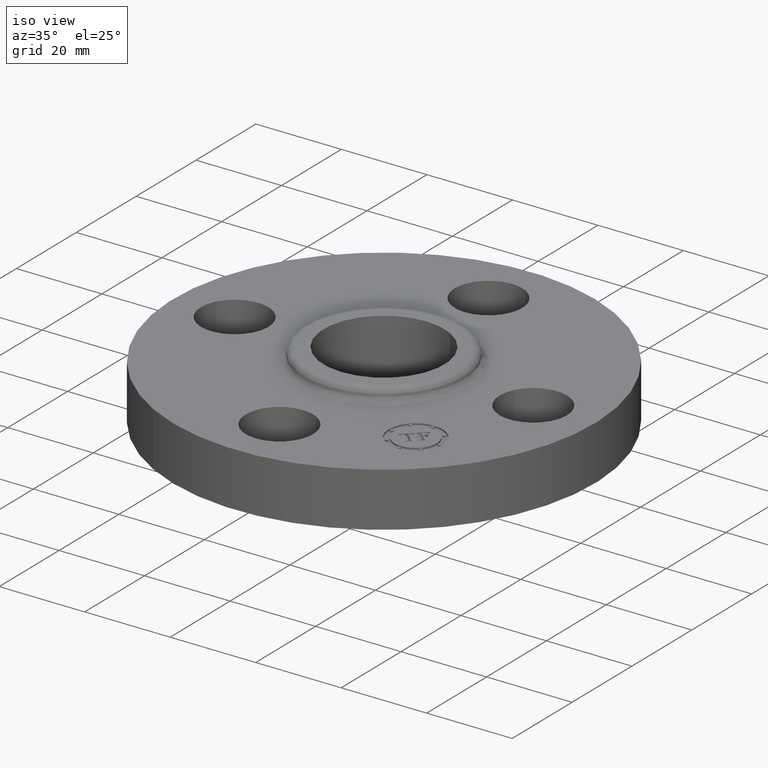
[diagram: clean part render]
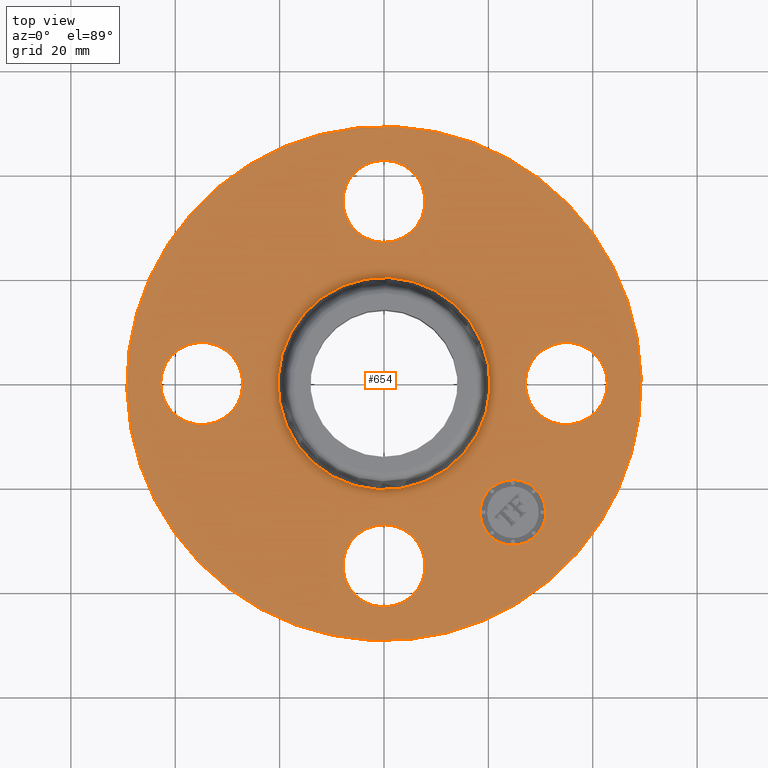
[diagram: tour spotlight — one face highlighted and labeled with its STEP entity id]
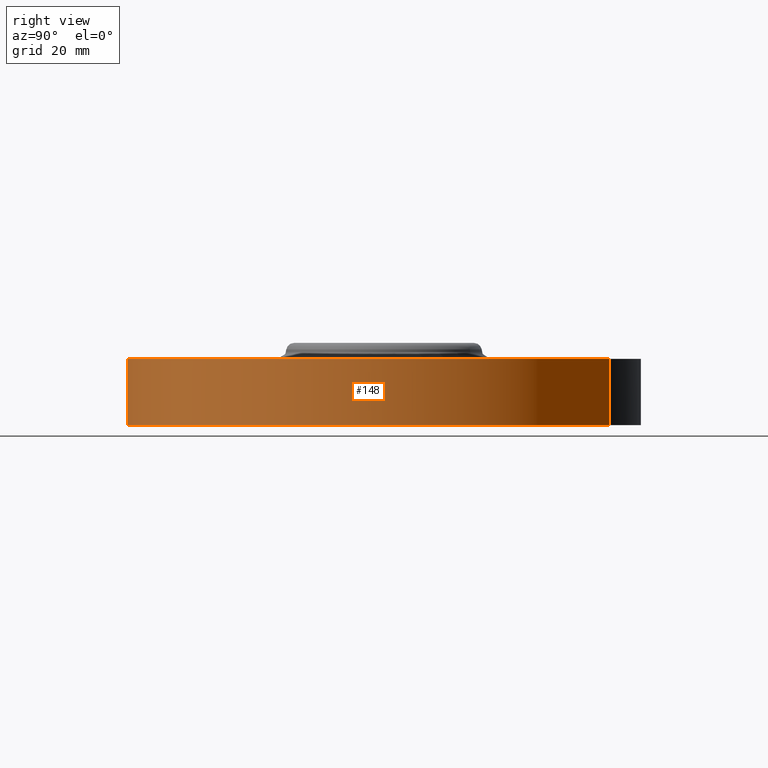
[diagram: tour spotlight — one face highlighted and labeled with its STEP entity id]
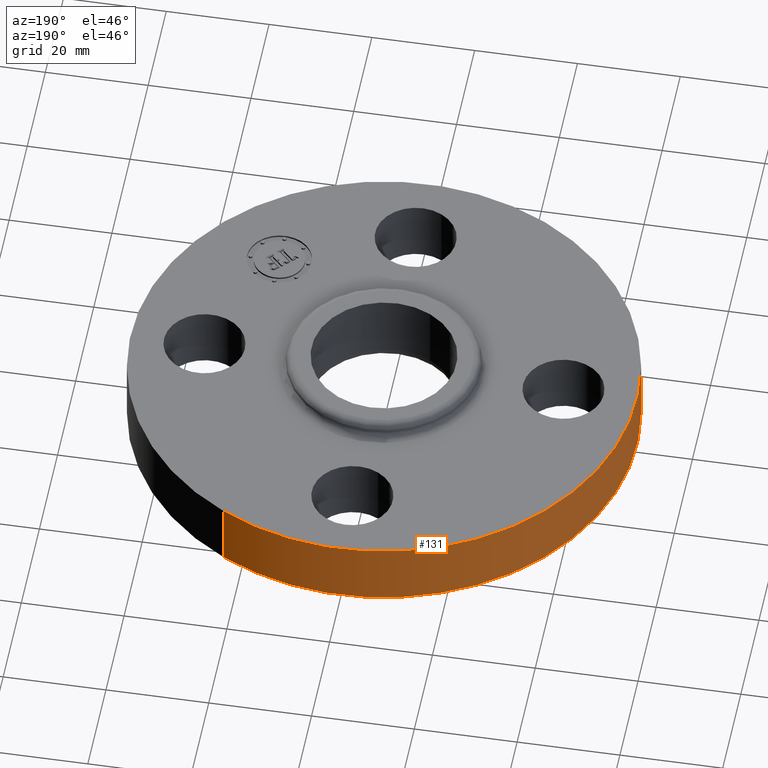
[diagram: tour spotlight — one face highlighted and labeled with its STEP entity id]
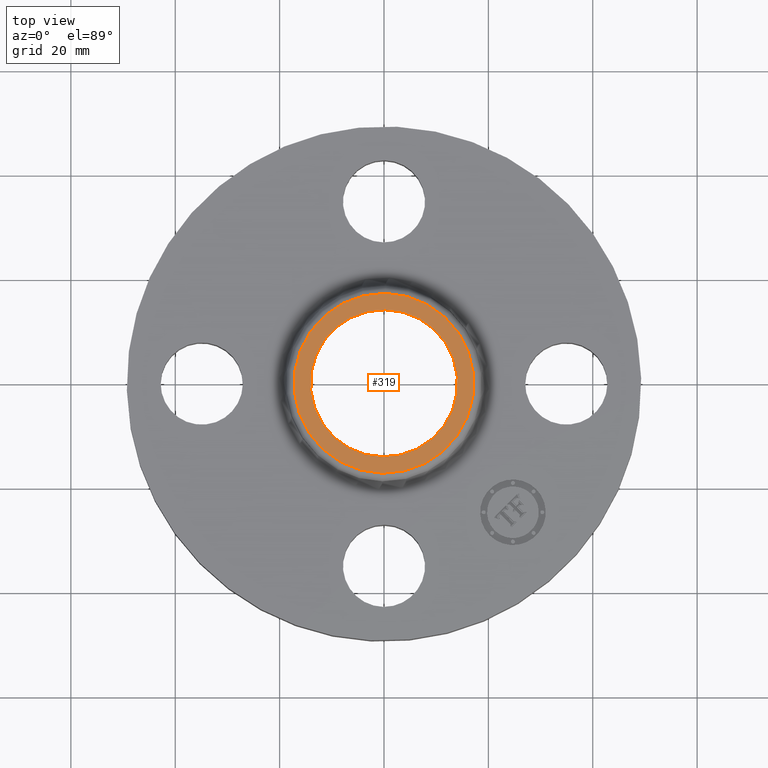
[diagram: tour spotlight — one face highlighted and labeled with its STEP entity id]
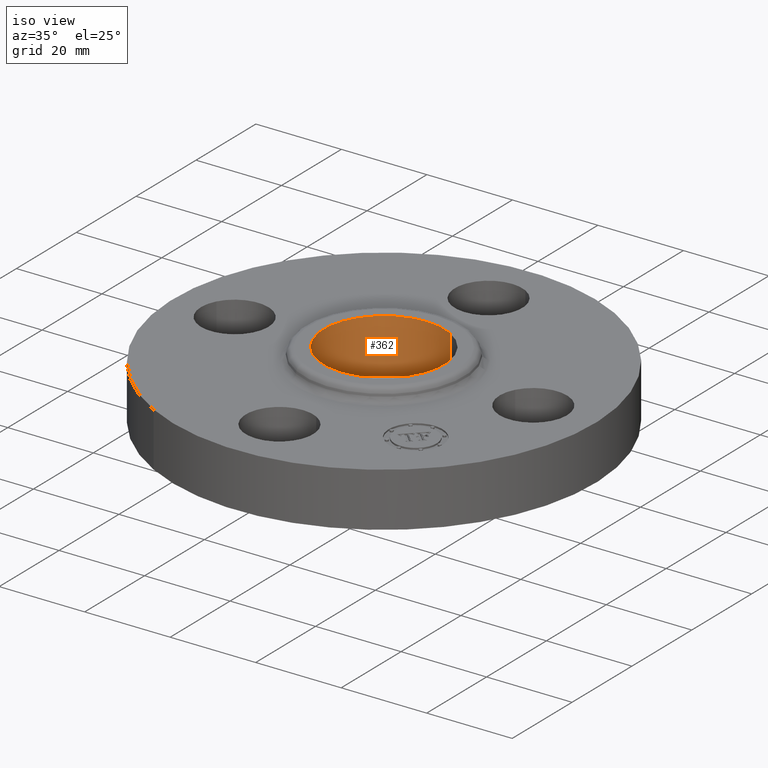
[diagram: tour spotlight — one face highlighted and labeled with its STEP entity id]
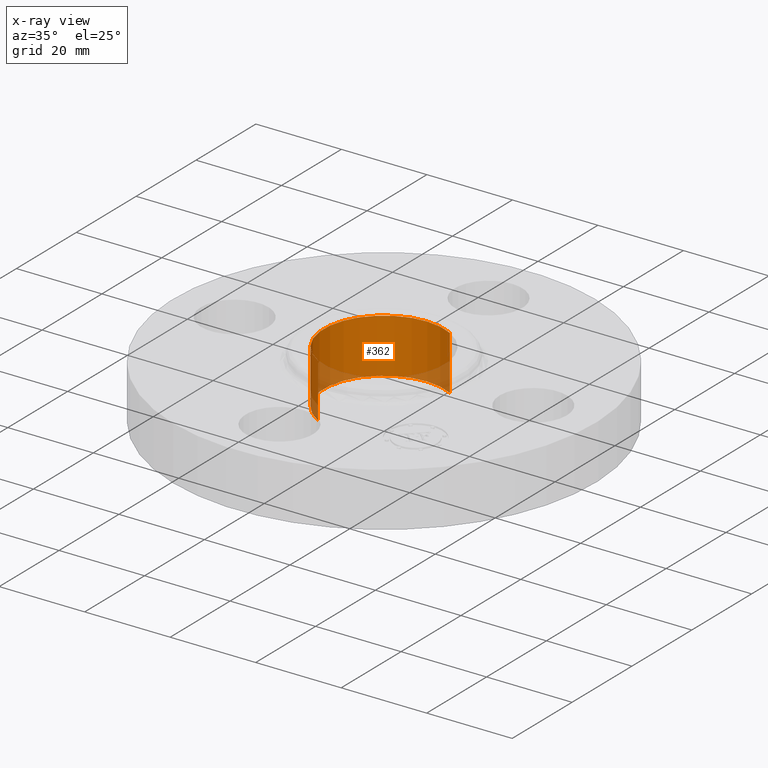
[diagram: x-ray of the same camera — body ghosted, this tour face saturated]
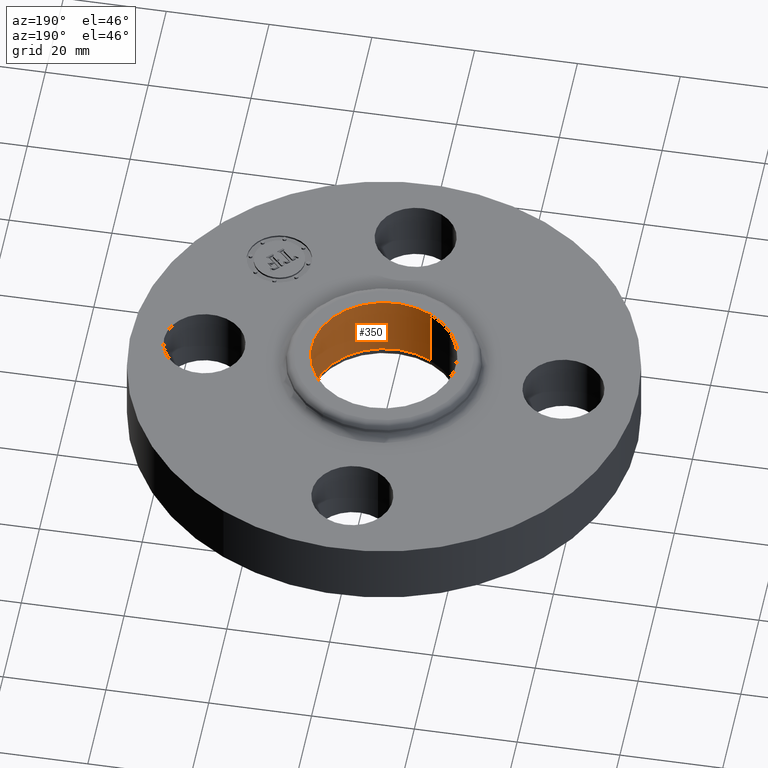
[diagram: tour spotlight — one face highlighted and labeled with its STEP entity id]
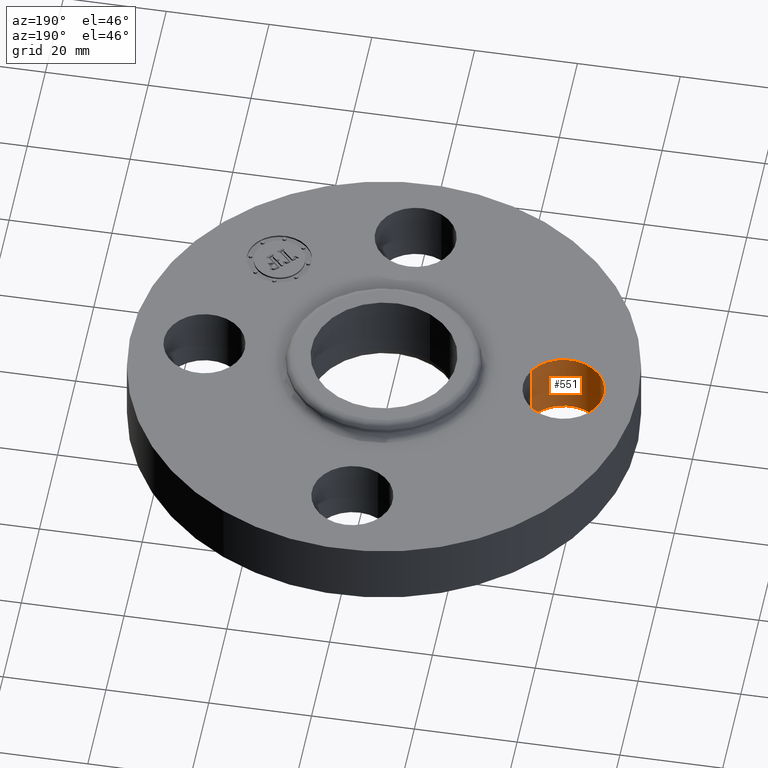
[diagram: tour spotlight — one face highlighted and labeled with its STEP entity id]
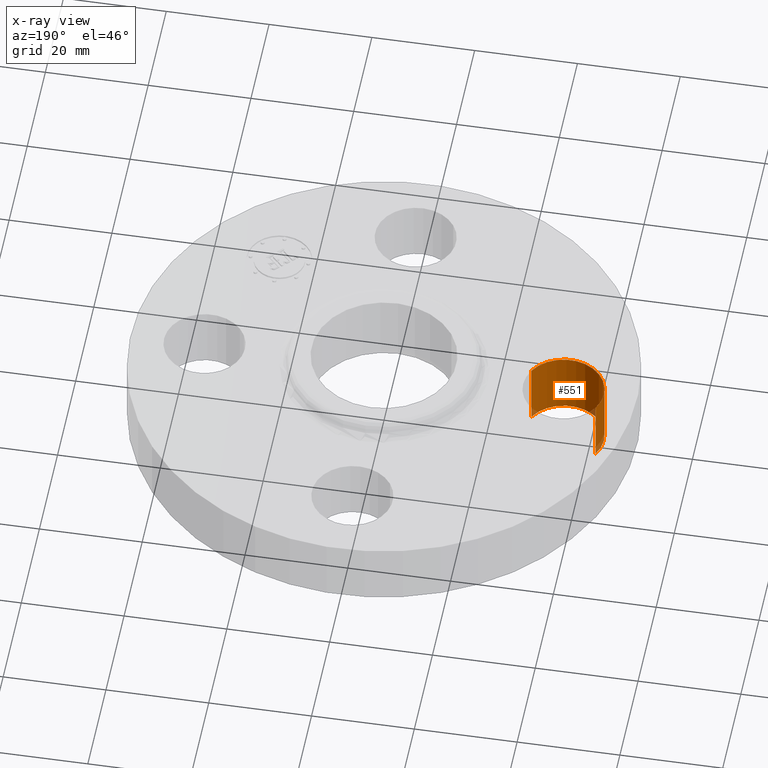
[diagram: x-ray of the same camera — body ghosted, this tour face saturated]
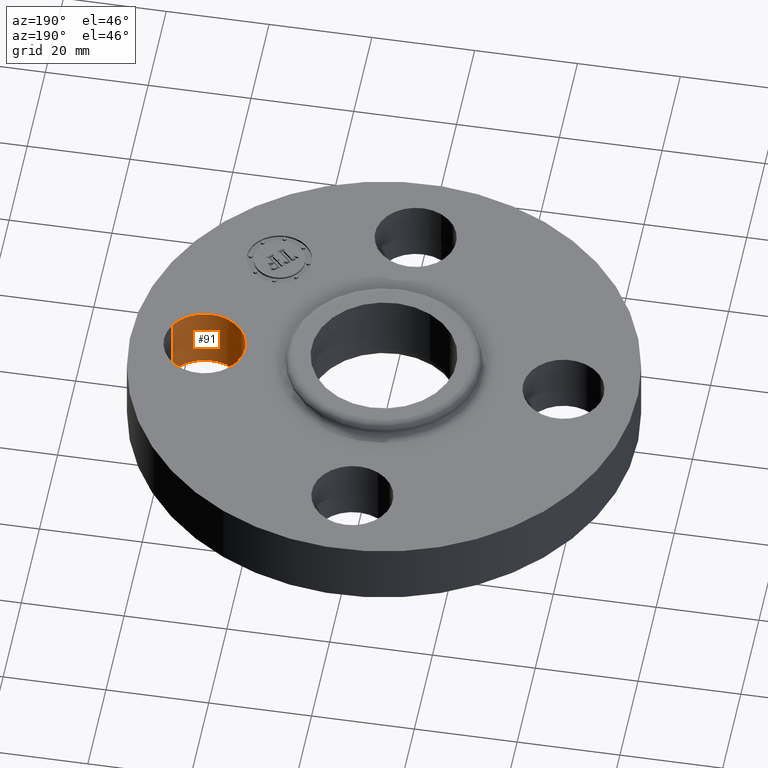
[diagram: tour spotlight — one face highlighted and labeled with its STEP entity id]
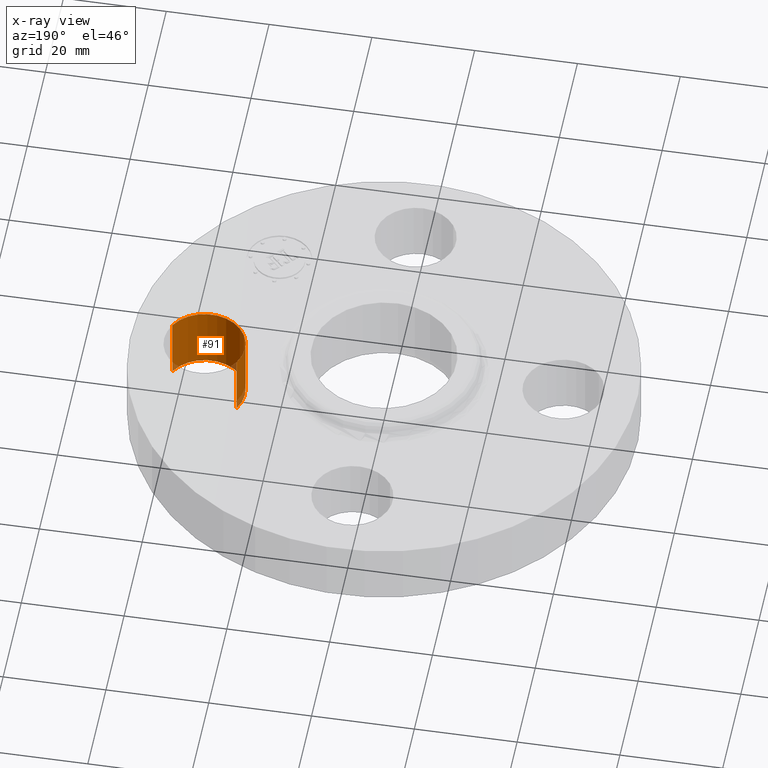
[diagram: x-ray of the same camera — body ghosted, this tour face saturated]
A machine part: a face-by-face anatomy tour. The part has 408 B-rep faces; the first image is the clean iso view, then the 8 largest visible faces are spotlighted one at a time (largest first), each with its STEP entity span.

Face 1 — top view, entity #654. In plain terms, the highlighted planar face has unit normal (0, 0, -1).
Definition (entity closure, byte-faithful):
#65=AXIS2_PLACEMENT_3D('Circle Axis2P3D',#63,#64,$) ;
#82=AXIS2_PLACEMENT_3D('Circle Axis2P3D',#80,#81,$) ;
#115=AXIS2_PLACEMENT_3D('Circle Axis2P3D',#113,#114,$) ;
#139=AXIS2_PLACEMENT_3D('Circle Axis2P3D',#137,#138,$) ;
#156=AXIS2_PLACEMENT_3D('Circle Axis2P3D',#154,#155,$) ;
#191=AXIS2_PLACEMENT_3D('Circle Axis2P3D',#189,#190,$) ;
#499=AXIS2_PLACEMENT_3D('Circle Axis2P3D',#497,#498,$) ;
#511=AXIS2_PLACEMENT_3D('Circle Axis2P3D',#509,#510,$) ;
#542=AXIS2_PLACEMENT_3D('Circle Axis2P3D',#540,#541,$) ;
#554=AXIS2_PLACEMENT_3D('Circle Axis2P3D',#552,#553,$) ;
#585=AXIS2_PLACEMENT_3D('Circle Axis2P3D',#583,#584,$) ;
#597=AXIS2_PLACEMENT_3D('Circle Axis2P3D',#595,#596,$) ;
#610=AXIS2_PLACEMENT_3D('Plane Axis2P3D',#607,#608,#609) ;
#638=AXIS2_PLACEMENT_3D('Circle Axis2P3D',#636,#637,$) ;
#647=AXIS2_PLACEMENT_3D('Circle Axis2P3D',#645,#646,$) ;
#46=CARTESIAN_POINT('Vertex',(1.10294940582,0.148621916968,0.500000000002)) ;
#60=CARTESIAN_POINT('Vertex',(1.64705059419,-0.148621916968,0.500000000002)) ;
#63=CARTESIAN_POINT('Axis2P3D Location',(1.37500000001,0.,0.500000000002)) ;
#80=CARTESIAN_POINT('Axis2P3D Location',(1.37500000001,0.,0.500000000002)) ;
#110=CARTESIAN_POINT('Vertex',(-0.930085544896,-1.70251017007,0.500000000002)) ;
#113=CARTESIAN_POINT('Axis2P3D Location',(0.,0.,0.500000000002)) ;
#117=CARTESIAN_POINT('Vertex',(0.930085544896,1.70251017007,0.500000000002)) ;
#137=CARTESIAN_POINT('Axis2P3D Location',(0.,0.,0.500000000002)) ;
#154=CARTESIAN_POINT('Axis2P3D Location',(0.,0.,0.500000000002)) ;
#158=CARTESIAN_POINT('Vertex',(0.383706301512,0.702369673661,0.500000000002)) ;
#160=CARTESIAN_POINT('Vertex',(-0.383706301512,-0.702369673661,0.500000000002)) ;
#189=CARTESIAN_POINT('Axis2P3D Location',(0.,0.,0.500000000002)) ;
#487=CARTESIAN_POINT('Vertex',(-0.148621916968,1.10294940582,0.500000000002)) ;
#494=CARTESIAN_POINT('Vertex',(0.148621916968,1.64705059419,0.500000000002)) ;
#497=CARTESIAN_POINT('Axis2P3D Location',(-2.52583402325E-016,1.37500000001,0.500000000002)) ;
#509=CARTESIAN_POINT('Axis2P3D Location',(-2.52583402325E-016,1.37500000001,0.500000000002)) ;
#530=CARTESIAN_POINT('Vertex',(-1.10294940582,-0.148621916968,0.500000000002)) ;
#537=CARTESIAN_POINT('Vertex',(-1.64705059419,0.148621916968,0.500000000002)) ;
#540=CARTESIAN_POINT('Axis2P3D Location',(-1.37500000001,-1.68388934883E-016,0.500000000002)) ;
#552=CARTESIAN_POINT('Axis2P3D Location',(-1.37500000001,-1.68388934883E-016,0.500000000002)) ;
#573=CARTESIAN_POINT('Vertex',(0.148621916968,-1.10294940582,0.500000000002)) ;
#580=CARTESIAN_POINT('Vertex',(-0.148621916968,-1.64705059419,0.500000000002)) ;
#583=CARTESIAN_POINT('Axis2P3D Location',(-1.9554676711E-016,-1.37500000001,0.500000000002)) ;
#595=CARTESIAN_POINT('Axis2P3D Location',(-1.9554676711E-016,-1.37500000001,0.500000000002)) ;
#607=CARTESIAN_POINT('Axis2P3D Location',(0.,1.94000000001,0.500000000002)) ;
#636=CARTESIAN_POINT('Axis2P3D Location',(0.972271824135,-0.972271824135,0.500000000002)) ;
#640=CARTESIAN_POINT('Vertex',(1.14728075248,-0.797262895791,0.500000000002)) ;
#642=CARTESIAN_POINT('Vertex',(0.797262895791,-1.14728075248,0.500000000002)) ;
#645=CARTESIAN_POINT('Axis2P3D Location',(0.972271824135,-0.972271824135,0.500000000002)) ;
#64=DIRECTION('Axis2P3D Direction',(0.,-0.,-0.0393700787402)) ;
#81=DIRECTION('Axis2P3D Direction',(0.,-0.,-0.0393700787402)) ;
#114=DIRECTION('Axis2P3D Direction',(0.,0.,-0.0393700787402)) ;
#138=DIRECTION('Axis2P3D Direction',(0.,0.,-0.0393700787402)) ;
#155=DIRECTION('Axis2P3D Direction',(0.,0.,-0.0393700787402)) ;
#190=DIRECTION('Axis2P3D Direction',(0.,0.,-0.0393700787402)) ;
#498=DIRECTION('Axis2P3D Direction',(0.,0.,-0.0393700787402)) ;
#510=DIRECTION('Axis2P3D Direction',(0.,0.,-0.0393700787402)) ;
#541=DIRECTION('Axis2P3D Direction',(-0.,0.,-0.0393700787402)) ;
#553=DIRECTION('Axis2P3D Direction',(-0.,0.,-0.0393700787402)) ;
#584=DIRECTION('Axis2P3D Direction',(0.,-0.,-0.0393700787402)) ;
#596=DIRECTION('Axis2P3D Direction',(0.,-0.,-0.0393700787402)) ;
#608=DIRECTION('Axis2P3D Direction',(0.,0.,-0.0393700787402)) ;
#609=DIRECTION('Axis2P3D XDirection',(0.0393700787402,0.,0.)) ;
#637=DIRECTION('Axis2P3D Direction',(0.,0.,-0.0393700787402)) ;
#646=DIRECTION('Axis2P3D Direction',(0.,0.,-0.0393700787402)) ;
#613=ORIENTED_EDGE('',*,*,#141,.F.) ;
#614=ORIENTED_EDGE('',*,*,#119,.F.) ;
#617=ORIENTED_EDGE('',*,*,#67,.T.) ;
#618=ORIENTED_EDGE('',*,*,#84,.T.) ;
#621=ORIENTED_EDGE('',*,*,#193,.T.) ;
#622=ORIENTED_EDGE('',*,*,#162,.T.) ;
#625=ORIENTED_EDGE('',*,*,#599,.T.) ;
#626=ORIENTED_EDGE('',*,*,#587,.T.) ;
#629=ORIENTED_EDGE('',*,*,#556,.T.) ;
#630=ORIENTED_EDGE('',*,*,#544,.T.) ;
#633=ORIENTED_EDGE('',*,*,#513,.T.) ;
#634=ORIENTED_EDGE('',*,*,#501,.T.) ;
#651=ORIENTED_EDGE('',*,*,#644,.T.) ;
#652=ORIENTED_EDGE('',*,*,#649,.T.) ;
#619=FACE_BOUND('',#616,.T.) ;
#623=FACE_BOUND('',#620,.T.) ;
#627=FACE_BOUND('',#624,.T.) ;
#631=FACE_BOUND('',#628,.T.) ;
#635=FACE_BOUND('',#632,.T.) ;
#653=FACE_BOUND('',#650,.T.) ;
#654=ADVANCED_FACE('PartBody',(#615,#619,#623,#627,#631,#635,#653),#611,.F.) ;
#66=CIRCLE('generated circle',#65,0.310000000001) ;
#83=CIRCLE('generated circle',#82,0.310000000001) ;
#116=CIRCLE('generated circle',#115,1.94000000001) ;
#140=CIRCLE('generated circle',#139,1.94000000001) ;
#157=CIRCLE('generated circle',#156,0.800345977874) ;
#192=CIRCLE('generated circle',#191,0.800345977874) ;
#500=CIRCLE('generated circle',#499,0.310000000001) ;
#512=CIRCLE('generated circle',#511,0.310000000001) ;
#543=CIRCLE('generated circle',#542,0.310000000001) ;
#555=CIRCLE('generated circle',#554,0.310000000001) ;
#586=CIRCLE('generated circle',#585,0.310000000001) ;
#598=CIRCLE('generated circle',#597,0.310000000001) ;
#639=CIRCLE('generated circle',#638,0.247500000001) ;
#648=CIRCLE('generated circle',#647,0.247500000001) ;
#67=EDGE_CURVE('',#47,#61,#66,.T.) ;
#84=EDGE_CURVE('',#61,#47,#83,.T.) ;
#119=EDGE_CURVE('',#111,#118,#116,.T.) ;
#141=EDGE_CURVE('',#118,#111,#140,.T.) ;
#162=EDGE_CURVE('',#159,#161,#157,.T.) ;
#193=EDGE_CURVE('',#161,#159,#192,.T.) ;
#501=EDGE_CURVE('',#488,#495,#500,.T.) ;
#513=EDGE_CURVE('',#495,#488,#512,.T.) ;
#544=EDGE_CURVE('',#531,#538,#543,.T.) ;
#556=EDGE_CURVE('',#538,#531,#555,.T.) ;
#587=EDGE_CURVE('',#574,#581,#586,.T.) ;
#599=EDGE_CURVE('',#581,#574,#598,.T.) ;
#644=EDGE_CURVE('',#641,#643,#639,.T.) ;
#649=EDGE_CURVE('',#643,#641,#648,.T.) ;
#612=EDGE_LOOP('',(#613,#614)) ;
#616=EDGE_LOOP('',(#617,#618)) ;
#620=EDGE_LOOP('',(#621,#622)) ;
#624=EDGE_LOOP('',(#625,#626)) ;
#628=EDGE_LOOP('',(#629,#630)) ;
#632=EDGE_LOOP('',(#633,#634)) ;
#650=EDGE_LOOP('',(#651,#652)) ;
#615=FACE_OUTER_BOUND('',#612,.T.) ;
#611=PLANE('',#610) ;
#47=VERTEX_POINT('',#46) ;
#61=VERTEX_POINT('',#60) ;
#111=VERTEX_POINT('',#110) ;
#118=VERTEX_POINT('',#117) ;
#159=VERTEX_POINT('',#158) ;
#161=VERTEX_POINT('',#160) ;
#488=VERTEX_POINT('',#487) ;
#495=VERTEX_POINT('',#494) ;
#531=VERTEX_POINT('',#530) ;
#538=VERTEX_POINT('',#537) ;
#574=VERTEX_POINT('',#573) ;
#581=VERTEX_POINT('',#580) ;
#641=VERTEX_POINT('',#640) ;
#643=VERTEX_POINT('',#642) ;

Face 2 — right view, entity #148. In plain terms, the highlighted cylindrical surface (partial cylindrical patch) has radius 49.276 mm, axis along (0, 0, -1).
Definition (entity closure, byte-faithful):
#95=AXIS2_PLACEMENT_3D('Cylinder Axis2P3D',#92,#93,#94) ;
#134=AXIS2_PLACEMENT_3D('Circle Axis2P3D',#132,#133,$) ;
#139=AXIS2_PLACEMENT_3D('Circle Axis2P3D',#137,#138,$) ;
#92=CARTESIAN_POINT('Axis2P3D Location',(0.,0.,0.310000000002)) ;
#101=CARTESIAN_POINT('Vertex',(-0.930085544896,-1.70251017007,3.49676543189E-017)) ;
#103=CARTESIAN_POINT('Vertex',(0.930085544896,1.70251017007,3.49676543189E-017)) ;
#106=CARTESIAN_POINT('Line Origine',(-0.930085544896,-1.70251017007,0.250000000001)) ;
#110=CARTESIAN_POINT('Vertex',(-0.930085544896,-1.70251017007,0.500000000002)) ;
#117=CARTESIAN_POINT('Vertex',(0.930085544896,1.70251017007,0.500000000002)) ;
#120=CARTESIAN_POINT('Line Origine',(0.930085544896,1.70251017007,0.250000000001)) ;
#132=CARTESIAN_POINT('Axis2P3D Location',(0.,0.,6.99353086378E-017)) ;
#137=CARTESIAN_POINT('Axis2P3D Location',(0.,0.,0.500000000002)) ;
#93=DIRECTION('Axis2P3D Direction',(0.,0.,-0.0393700787402)) ;
#94=DIRECTION('Axis2P3D XDirection',(0.0188750212049,0.0345504945626,0.)) ;
#107=DIRECTION('Vector Direction',(0.,0.,-0.0393700787402)) ;
#121=DIRECTION('Vector Direction',(0.,0.,-0.0393700787402)) ;
#133=DIRECTION('Axis2P3D Direction',(0.,0.,-0.0393700787402)) ;
#138=DIRECTION('Axis2P3D Direction',(0.,0.,-0.0393700787402)) ;
#108=VECTOR('Line Direction',#107,0.0393700787402) ;
#122=VECTOR('Line Direction',#121,0.0393700787402) ;
#143=ORIENTED_EDGE('',*,*,#136,.F.) ;
#144=ORIENTED_EDGE('',*,*,#124,.T.) ;
#145=ORIENTED_EDGE('',*,*,#141,.T.) ;
#146=ORIENTED_EDGE('',*,*,#112,.F.) ;
#148=ADVANCED_FACE('PartBody',(#147),#96,.T.) ;
#135=CIRCLE('generated circle',#134,1.94000000001) ;
#140=CIRCLE('generated circle',#139,1.94000000001) ;
#96=CYLINDRICAL_SURFACE('generated cylinder',#95,1.94000000001) ;
#112=EDGE_CURVE('',#102,#111,#109,.F.) ;
#124=EDGE_CURVE('',#104,#118,#123,.F.) ;
#136=EDGE_CURVE('',#104,#102,#135,.T.) ;
#141=EDGE_CURVE('',#118,#111,#140,.T.) ;
#142=EDGE_LOOP('',(#143,#144,#145,#146)) ;
#147=FACE_OUTER_BOUND('',#142,.T.) ;
#109=LINE('Line',#106,#108) ;
#123=LINE('Line',#120,#122) ;
#102=VERTEX_POINT('',#101) ;
#104=VERTEX_POINT('',#103) ;
#111=VERTEX_POINT('',#110) ;
#118=VERTEX_POINT('',#117) ;

Face 3 — auxiliary view, entity #131. In plain terms, the highlighted cylindrical surface (partial cylindrical patch) has radius 49.276 mm, axis along (0, 0, -1).
Definition (entity closure, byte-faithful):
#95=AXIS2_PLACEMENT_3D('Cylinder Axis2P3D',#92,#93,#94) ;
#99=AXIS2_PLACEMENT_3D('Circle Axis2P3D',#97,#98,$) ;
#115=AXIS2_PLACEMENT_3D('Circle Axis2P3D',#113,#114,$) ;
#92=CARTESIAN_POINT('Axis2P3D Location',(0.,0.,0.310000000002)) ;
#97=CARTESIAN_POINT('Axis2P3D Location',(0.,0.,6.99353086378E-017)) ;
#101=CARTESIAN_POINT('Vertex',(-0.930085544896,-1.70251017007,3.49676543189E-017)) ;
#103=CARTESIAN_POINT('Vertex',(0.930085544896,1.70251017007,3.49676543189E-017)) ;
#106=CARTESIAN_POINT('Line Origine',(-0.930085544896,-1.70251017007,0.250000000001)) ;
#110=CARTESIAN_POINT('Vertex',(-0.930085544896,-1.70251017007,0.500000000002)) ;
#113=CARTESIAN_POINT('Axis2P3D Location',(0.,0.,0.500000000002)) ;
#117=CARTESIAN_POINT('Vertex',(0.930085544896,1.70251017007,0.500000000002)) ;
#120=CARTESIAN_POINT('Line Origine',(0.930085544896,1.70251017007,0.250000000001)) ;
#93=DIRECTION('Axis2P3D Direction',(0.,0.,-0.0393700787402)) ;
#94=DIRECTION('Axis2P3D XDirection',(0.0188750212049,0.0345504945626,0.)) ;
#98=DIRECTION('Axis2P3D Direction',(0.,0.,-0.0393700787402)) ;
#107=DIRECTION('Vector Direction',(0.,0.,-0.0393700787402)) ;
#114=DIRECTION('Axis2P3D Direction',(0.,0.,-0.0393700787402)) ;
#121=DIRECTION('Vector Direction',(0.,0.,-0.0393700787402)) ;
#108=VECTOR('Line Direction',#107,0.0393700787402) ;
#122=VECTOR('Line Direction',#121,0.0393700787402) ;
#126=ORIENTED_EDGE('',*,*,#105,.F.) ;
#127=ORIENTED_EDGE('',*,*,#112,.T.) ;
#128=ORIENTED_EDGE('',*,*,#119,.T.) ;
#129=ORIENTED_EDGE('',*,*,#124,.F.) ;
#131=ADVANCED_FACE('PartBody',(#130),#96,.T.) ;
#100=CIRCLE('generated circle',#99,1.94000000001) ;
#116=CIRCLE('generated circle',#115,1.94000000001) ;
#96=CYLINDRICAL_SURFACE('generated cylinder',#95,1.94000000001) ;
#105=EDGE_CURVE('',#102,#104,#100,.T.) ;
#112=EDGE_CURVE('',#102,#111,#109,.F.) ;
#119=EDGE_CURVE('',#111,#118,#116,.T.) ;
#124=EDGE_CURVE('',#104,#118,#123,.F.) ;
#125=EDGE_LOOP('',(#126,#127,#128,#129)) ;
#130=FACE_OUTER_BOUND('',#125,.T.) ;
#109=LINE('Line',#106,#108) ;
#123=LINE('Line',#120,#122) ;
#102=VERTEX_POINT('',#101) ;
#104=VERTEX_POINT('',#103) ;
#111=VERTEX_POINT('',#110) ;
#118=VERTEX_POINT('',#117) ;

Face 4 — top view, entity #319. In plain terms, the highlighted planar face has unit normal (0, 0, -1).
Definition (entity closure, byte-faithful):
#263=AXIS2_PLACEMENT_3D('Circle Axis2P3D',#261,#262,$) ;
#282=AXIS2_PLACEMENT_3D('Circle Axis2P3D',#280,#281,$) ;
#295=AXIS2_PLACEMENT_3D('Plane Axis2P3D',#292,#293,#294) ;
#303=AXIS2_PLACEMENT_3D('Circle Axis2P3D',#301,#302,$) ;
#312=AXIS2_PLACEMENT_3D('Circle Axis2P3D',#310,#311,$) ;
#258=CARTESIAN_POINT('Vertex',(0.325287727474,0.595435191164,0.620000000002)) ;
#261=CARTESIAN_POINT('Axis2P3D Location',(0.,0.,0.620000000002)) ;
#265=CARTESIAN_POINT('Vertex',(-0.325287727474,-0.595435191164,0.620000000002)) ;
#280=CARTESIAN_POINT('Axis2P3D Location',(0.,0.,0.620000000002)) ;
#292=CARTESIAN_POINT('Axis2P3D Location',(0.,0.678494784447,0.620000000002)) ;
#301=CARTESIAN_POINT('Axis2P3D Location',(0.,0.,0.620000000002)) ;
#305=CARTESIAN_POINT('Vertex',(-0.266081173926,-0.487058321851,0.620000000002)) ;
#307=CARTESIAN_POINT('Vertex',(0.266081173926,0.487058321851,0.620000000002)) ;
#310=CARTESIAN_POINT('Axis2P3D Location',(0.,0.,0.620000000002)) ;
#262=DIRECTION('Axis2P3D Direction',(0.,0.,-0.0393700787402)) ;
#281=DIRECTION('Axis2P3D Direction',(0.,0.,-0.0393700787402)) ;
#293=DIRECTION('Axis2P3D Direction',(0.,0.,-0.0393700787402)) ;
#294=DIRECTION('Axis2P3D XDirection',(0.0393700787402,0.,0.)) ;
#302=DIRECTION('Axis2P3D Direction',(0.,0.,-0.0393700787402)) ;
#311=DIRECTION('Axis2P3D Direction',(0.,0.,-0.0393700787402)) ;
#298=ORIENTED_EDGE('',*,*,#267,.F.) ;
#299=ORIENTED_EDGE('',*,*,#284,.F.) ;
#316=ORIENTED_EDGE('',*,*,#309,.T.) ;
#317=ORIENTED_EDGE('',*,*,#314,.T.) ;
#318=FACE_BOUND('',#315,.T.) ;
#319=ADVANCED_FACE('PartBody',(#300,#318),#296,.F.) ;
#264=CIRCLE('generated circle',#263,0.678494784447) ;
#283=CIRCLE('generated circle',#282,0.678494784447) ;
#304=CIRCLE('generated circle',#303,0.555000000002) ;
#313=CIRCLE('generated circle',#312,0.555000000002) ;
#267=EDGE_CURVE('',#259,#266,#264,.T.) ;
#284=EDGE_CURVE('',#266,#259,#283,.T.) ;
#309=EDGE_CURVE('',#306,#308,#304,.T.) ;
#314=EDGE_CURVE('',#308,#306,#313,.T.) ;
#297=EDGE_LOOP('',(#298,#299)) ;
#315=EDGE_LOOP('',(#316,#317)) ;
#300=FACE_OUTER_BOUND('',#297,.T.) ;
#296=PLANE('',#295) ;
#259=VERTEX_POINT('',#258) ;
#266=VERTEX_POINT('',#265) ;
#306=VERTEX_POINT('',#305) ;
#308=VERTEX_POINT('',#307) ;

Face 5 — iso view, entity #362. An x-ray twin of the same camera follows (body ghosted, this face saturated) — the face is partly hidden behind the body. In plain terms, the highlighted cylindrical surface (partial cylindrical patch) has radius 14.097 mm, axis along (0, 0, -1).
Definition (entity closure, byte-faithful):
#303=AXIS2_PLACEMENT_3D('Circle Axis2P3D',#301,#302,$) ;
#323=AXIS2_PLACEMENT_3D('Cylinder Axis2P3D',#320,#321,#322) ;
#353=AXIS2_PLACEMENT_3D('Circle Axis2P3D',#351,#352,$) ;
#301=CARTESIAN_POINT('Axis2P3D Location',(0.,0.,0.620000000002)) ;
#305=CARTESIAN_POINT('Vertex',(-0.266081173926,-0.487058321851,0.620000000002)) ;
#307=CARTESIAN_POINT('Vertex',(0.266081173926,0.487058321851,0.620000000002)) ;
#320=CARTESIAN_POINT('Axis2P3D Location',(0.,0.,0.310000000002)) ;
#325=CARTESIAN_POINT('Line Origine',(0.266081173926,0.487058321851,0.370000000001)) ;
#329=CARTESIAN_POINT('Vertex',(0.266081173926,0.487058321851,0.12)) ;
#336=CARTESIAN_POINT('Vertex',(-0.266081173926,-0.487058321851,0.12)) ;
#339=CARTESIAN_POINT('Line Origine',(-0.266081173926,-0.487058321851,0.370000000001)) ;
#351=CARTESIAN_POINT('Axis2P3D Location',(0.,0.,0.12)) ;
#302=DIRECTION('Axis2P3D Direction',(0.,0.,-0.0393700787402)) ;
#321=DIRECTION('Axis2P3D Direction',(0.,0.,-0.0393700787402)) ;
#322=DIRECTION('Axis2P3D XDirection',(-0.0188750212049,-0.0345504945626,0.)) ;
#326=DIRECTION('Vector Direction',(0.,0.,-0.0393700787402)) ;
#340=DIRECTION('Vector Direction',(0.,0.,-0.0393700787402)) ;
#352=DIRECTION('Axis2P3D Direction',(0.,0.,-0.0393700787402)) ;
#327=VECTOR('Line Direction',#326,0.0393700787402) ;
#341=VECTOR('Line Direction',#340,0.0393700787402) ;
#357=ORIENTED_EDGE('',*,*,#309,.F.) ;
#358=ORIENTED_EDGE('',*,*,#343,.T.) ;
#359=ORIENTED_EDGE('',*,*,#355,.T.) ;
#360=ORIENTED_EDGE('',*,*,#331,.F.) ;
#362=ADVANCED_FACE('PartBody',(#361),#324,.F.) ;
#304=CIRCLE('generated circle',#303,0.555000000002) ;
#354=CIRCLE('generated circle',#353,0.555000000002) ;
#324=CYLINDRICAL_SURFACE('generated cylinder',#323,0.555000000002) ;
#309=EDGE_CURVE('',#306,#308,#304,.T.) ;
#331=EDGE_CURVE('',#308,#330,#328,.T.) ;
#343=EDGE_CURVE('',#306,#337,#342,.T.) ;
#355=EDGE_CURVE('',#337,#330,#354,.T.) ;
#356=EDGE_LOOP('',(#357,#358,#359,#360)) ;
#361=FACE_OUTER_BOUND('',#356,.T.) ;
#328=LINE('Line',#325,#327) ;
#342=LINE('Line',#339,#341) ;
#306=VERTEX_POINT('',#305) ;
#308=VERTEX_POINT('',#307) ;
#330=VERTEX_POINT('',#329) ;
#337=VERTEX_POINT('',#336) ;

Face 6 — auxiliary view, entity #350. In plain terms, the highlighted cylindrical surface (partial cylindrical patch) has radius 14.097 mm, axis along (0, 0, -1).
Definition (entity closure, byte-faithful):
#312=AXIS2_PLACEMENT_3D('Circle Axis2P3D',#310,#311,$) ;
#323=AXIS2_PLACEMENT_3D('Cylinder Axis2P3D',#320,#321,#322) ;
#334=AXIS2_PLACEMENT_3D('Circle Axis2P3D',#332,#333,$) ;
#305=CARTESIAN_POINT('Vertex',(-0.266081173926,-0.487058321851,0.620000000002)) ;
#307=CARTESIAN_POINT('Vertex',(0.266081173926,0.487058321851,0.620000000002)) ;
#310=CARTESIAN_POINT('Axis2P3D Location',(0.,0.,0.620000000002)) ;
#320=CARTESIAN_POINT('Axis2P3D Location',(0.,0.,0.310000000002)) ;
#325=CARTESIAN_POINT('Line Origine',(0.266081173926,0.487058321851,0.370000000001)) ;
#329=CARTESIAN_POINT('Vertex',(0.266081173926,0.487058321851,0.12)) ;
#332=CARTESIAN_POINT('Axis2P3D Location',(0.,0.,0.12)) ;
#336=CARTESIAN_POINT('Vertex',(-0.266081173926,-0.487058321851,0.12)) ;
#339=CARTESIAN_POINT('Line Origine',(-0.266081173926,-0.487058321851,0.370000000001)) ;
#311=DIRECTION('Axis2P3D Direction',(0.,0.,-0.0393700787402)) ;
#321=DIRECTION('Axis2P3D Direction',(0.,0.,-0.0393700787402)) ;
#322=DIRECTION('Axis2P3D XDirection',(-0.0188750212049,-0.0345504945626,0.)) ;
#326=DIRECTION('Vector Direction',(0.,0.,-0.0393700787402)) ;
#333=DIRECTION('Axis2P3D Direction',(0.,0.,-0.0393700787402)) ;
#340=DIRECTION('Vector Direction',(0.,0.,-0.0393700787402)) ;
#327=VECTOR('Line Direction',#326,0.0393700787402) ;
#341=VECTOR('Line Direction',#340,0.0393700787402) ;
#345=ORIENTED_EDGE('',*,*,#314,.F.) ;
#346=ORIENTED_EDGE('',*,*,#331,.T.) ;
#347=ORIENTED_EDGE('',*,*,#338,.T.) ;
#348=ORIENTED_EDGE('',*,*,#343,.F.) ;
#350=ADVANCED_FACE('PartBody',(#349),#324,.F.) ;
#313=CIRCLE('generated circle',#312,0.555000000002) ;
#335=CIRCLE('generated circle',#334,0.555000000002) ;
#324=CYLINDRICAL_SURFACE('generated cylinder',#323,0.555000000002) ;
#314=EDGE_CURVE('',#308,#306,#313,.T.) ;
#331=EDGE_CURVE('',#308,#330,#328,.T.) ;
#338=EDGE_CURVE('',#330,#337,#335,.T.) ;
#343=EDGE_CURVE('',#306,#337,#342,.T.) ;
#344=EDGE_LOOP('',(#345,#346,#347,#348)) ;
#349=FACE_OUTER_BOUND('',#344,.T.) ;
#328=LINE('Line',#325,#327) ;
#342=LINE('Line',#339,#341) ;
#306=VERTEX_POINT('',#305) ;
#308=VERTEX_POINT('',#307) ;
#330=VERTEX_POINT('',#329) ;
#337=VERTEX_POINT('',#336) ;

Face 7 — auxiliary view, entity #551. An x-ray twin of the same camera follows (body ghosted, this face saturated) — the face is partly hidden behind the body. In plain terms, the highlighted cylindrical surface (partial cylindrical patch) has radius 7.874 mm, axis along (-0, 0, -1).
Definition (entity closure, byte-faithful):
#443=AXIS2_PLACEMENT_3D('Circle Axis2P3D',#441,#442,$) ;
#524=AXIS2_PLACEMENT_3D('Cylinder Axis2P3D',#521,#522,#523) ;
#542=AXIS2_PLACEMENT_3D('Circle Axis2P3D',#540,#541,$) ;
#441=CARTESIAN_POINT('Axis2P3D Location',(-1.37500000001,-2.79741234551E-016,0.)) ;
#445=CARTESIAN_POINT('Vertex',(-1.10294940582,-0.148621916968,0.)) ;
#447=CARTESIAN_POINT('Vertex',(-1.64705059419,0.148621916968,0.)) ;
#521=CARTESIAN_POINT('Axis2P3D Location',(-1.37500000001,-1.68388934883E-016,0.496062992128)) ;
#526=CARTESIAN_POINT('Line Origine',(-1.10294940582,-0.148621916968,0.250000000001)) ;
#530=CARTESIAN_POINT('Vertex',(-1.10294940582,-0.148621916968,0.500000000002)) ;
#533=CARTESIAN_POINT('Line Origine',(-1.64705059419,0.148621916968,0.250000000001)) ;
#537=CARTESIAN_POINT('Vertex',(-1.64705059419,0.148621916968,0.500000000002)) ;
#540=CARTESIAN_POINT('Axis2P3D Location',(-1.37500000001,-1.68388934883E-016,0.500000000002)) ;
#442=DIRECTION('Axis2P3D Direction',(0.,0.,-0.0393700787402)) ;
#522=DIRECTION('Axis2P3D Direction',(-0.,0.,-0.0393700787402)) ;
#523=DIRECTION('Axis2P3D XDirection',(-0.0345504945626,0.0188750212049,0.)) ;
#527=DIRECTION('Vector Direction',(0.,0.,-0.0393700787402)) ;
#534=DIRECTION('Vector Direction',(0.,0.,-0.0393700787402)) ;
#541=DIRECTION('Axis2P3D Direction',(-0.,0.,-0.0393700787402)) ;
#528=VECTOR('Line Direction',#527,0.0393700787402) ;
#535=VECTOR('Line Direction',#534,0.0393700787402) ;
#546=ORIENTED_EDGE('',*,*,#532,.F.) ;
#547=ORIENTED_EDGE('',*,*,#449,.T.) ;
#548=ORIENTED_EDGE('',*,*,#539,.T.) ;
#549=ORIENTED_EDGE('',*,*,#544,.F.) ;
#551=ADVANCED_FACE('PartBody',(#550),#525,.F.) ;
#444=CIRCLE('generated circle',#443,0.310000000001) ;
#543=CIRCLE('generated circle',#542,0.310000000001) ;
#525=CYLINDRICAL_SURFACE('generated cylinder',#524,0.310000000001) ;
#449=EDGE_CURVE('',#446,#448,#444,.T.) ;
#532=EDGE_CURVE('',#446,#531,#529,.F.) ;
#539=EDGE_CURVE('',#448,#538,#536,.F.) ;
#544=EDGE_CURVE('',#531,#538,#543,.T.) ;
#545=EDGE_LOOP('',(#546,#547,#548,#549)) ;
#550=FACE_OUTER_BOUND('',#545,.T.) ;
#529=LINE('Line',#526,#528) ;
#536=LINE('Line',#533,#535) ;
#446=VERTEX_POINT('',#445) ;
#448=VERTEX_POINT('',#447) ;
#531=VERTEX_POINT('',#530) ;
#538=VERTEX_POINT('',#537) ;

Face 8 — auxiliary view, entity #91. An x-ray twin of the same camera follows (body ghosted, this face saturated) — the face is partly hidden behind the body. In plain terms, the highlighted cylindrical surface (partial cylindrical patch) has radius 7.874 mm, axis along (0, -0, -1).
Definition (entity closure, byte-faithful):
#38=AXIS2_PLACEMENT_3D('Cylinder Axis2P3D',#35,#36,#37) ;
#77=AXIS2_PLACEMENT_3D('Circle Axis2P3D',#75,#76,$) ;
#82=AXIS2_PLACEMENT_3D('Circle Axis2P3D',#80,#81,$) ;
#35=CARTESIAN_POINT('Axis2P3D Location',(1.37500000001,0.,0.496062992128)) ;
#40=CARTESIAN_POINT('Line Origine',(1.10294940582,0.148621916968,0.250000000001)) ;
#44=CARTESIAN_POINT('Vertex',(1.10294940582,0.148621916968,0.)) ;
#46=CARTESIAN_POINT('Vertex',(1.10294940582,0.148621916968,0.500000000002)) ;
#53=CARTESIAN_POINT('Vertex',(1.64705059419,-0.148621916968,0.)) ;
#56=CARTESIAN_POINT('Line Origine',(1.64705059419,-0.148621916968,0.250000000001)) ;
#60=CARTESIAN_POINT('Vertex',(1.64705059419,-0.148621916968,0.500000000002)) ;
#75=CARTESIAN_POINT('Axis2P3D Location',(1.37500000001,0.,0.)) ;
#80=CARTESIAN_POINT('Axis2P3D Location',(1.37500000001,0.,0.500000000002)) ;
#36=DIRECTION('Axis2P3D Direction',(0.,-0.,-0.0393700787402)) ;
#37=DIRECTION('Axis2P3D XDirection',(0.0345504945626,-0.0188750212049,0.)) ;
#41=DIRECTION('Vector Direction',(0.,0.,-0.0393700787402)) ;
#57=DIRECTION('Vector Direction',(0.,0.,-0.0393700787402)) ;
#76=DIRECTION('Axis2P3D Direction',(0.,-0.,-0.0393700787402)) ;
#81=DIRECTION('Axis2P3D Direction',(0.,-0.,-0.0393700787402)) ;
#42=VECTOR('Line Direction',#41,0.0393700787402) ;
#58=VECTOR('Line Direction',#57,0.0393700787402) ;
#86=ORIENTED_EDGE('',*,*,#62,.F.) ;
#87=ORIENTED_EDGE('',*,*,#79,.T.) ;
#88=ORIENTED_EDGE('',*,*,#48,.T.) ;
#89=ORIENTED_EDGE('',*,*,#84,.F.) ;
#91=ADVANCED_FACE('PartBody',(#90),#39,.F.) ;
#78=CIRCLE('generated circle',#77,0.310000000001) ;
#83=CIRCLE('generated circle',#82,0.310000000001) ;
#39=CYLINDRICAL_SURFACE('generated cylinder',#38,0.310000000001) ;
#48=EDGE_CURVE('',#45,#47,#43,.F.) ;
#62=EDGE_CURVE('',#54,#61,#59,.F.) ;
#79=EDGE_CURVE('',#54,#45,#78,.T.) ;
#84=EDGE_CURVE('',#61,#47,#83,.T.) ;
#85=EDGE_LOOP('',(#86,#87,#88,#89)) ;
#90=FACE_OUTER_BOUND('',#85,.T.) ;
#43=LINE('Line',#40,#42) ;
#59=LINE('Line',#56,#58) ;
#45=VERTEX_POINT('',#44) ;
#47=VERTEX_POINT('',#46) ;
#54=VERTEX_POINT('',#53) ;
#61=VERTEX_POINT('',#60) ;